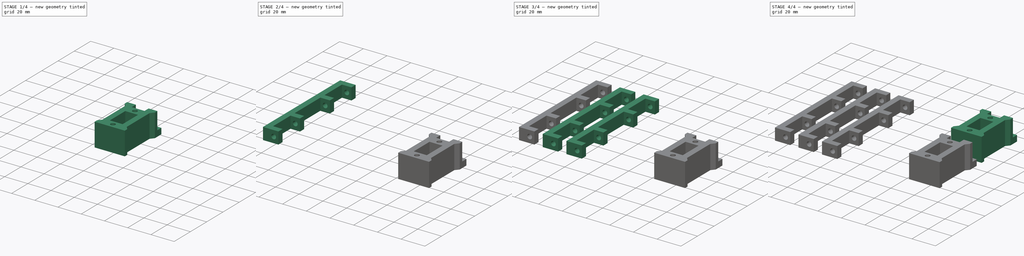
[diagram: build sequence overview — one tinted view per stage of 4, left to right]
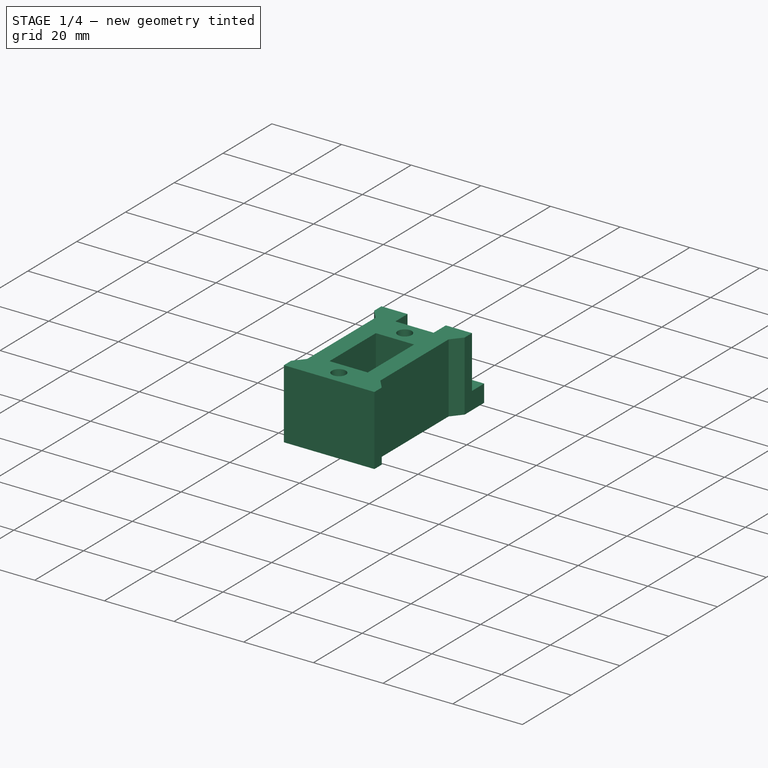
[diagram: stage 1 of 4 — iso view after this stage's code; geometry added in this stage tinted green]
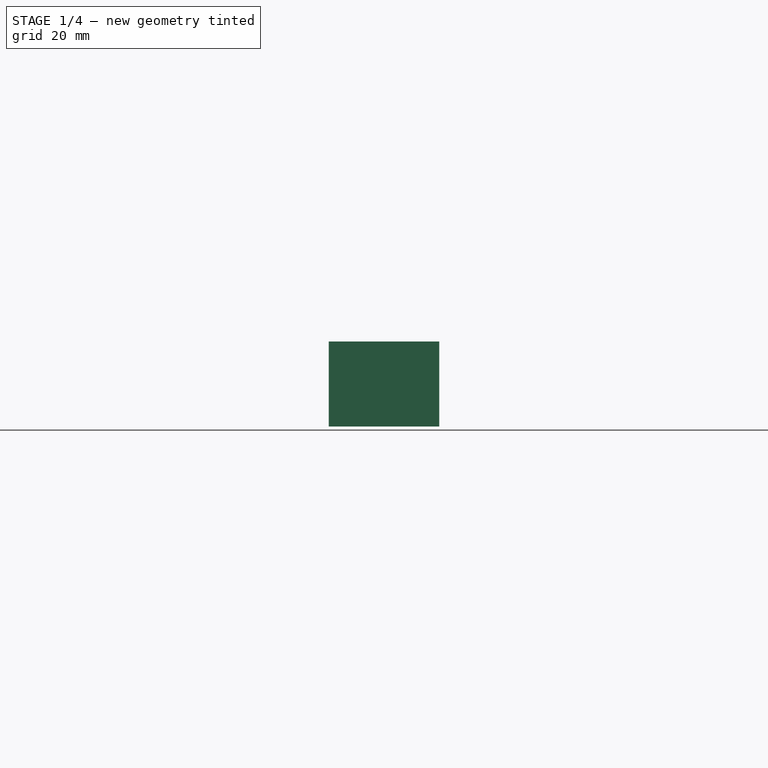
[diagram: stage 1 of 4 — front view after this stage's code; geometry added in this stage tinted green]
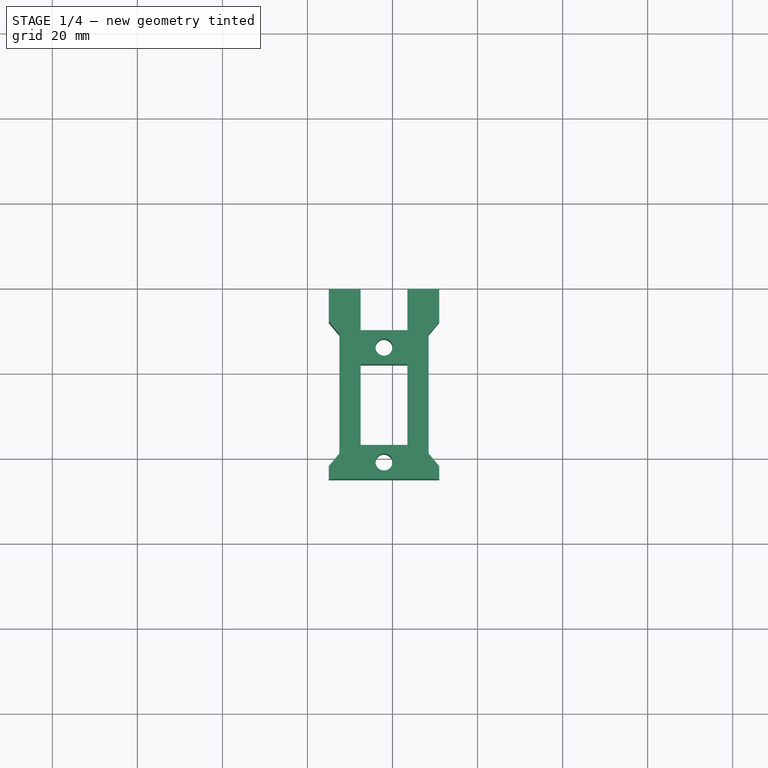
[diagram: stage 1 of 4 — top view after this stage's code; geometry added in this stage tinted green]
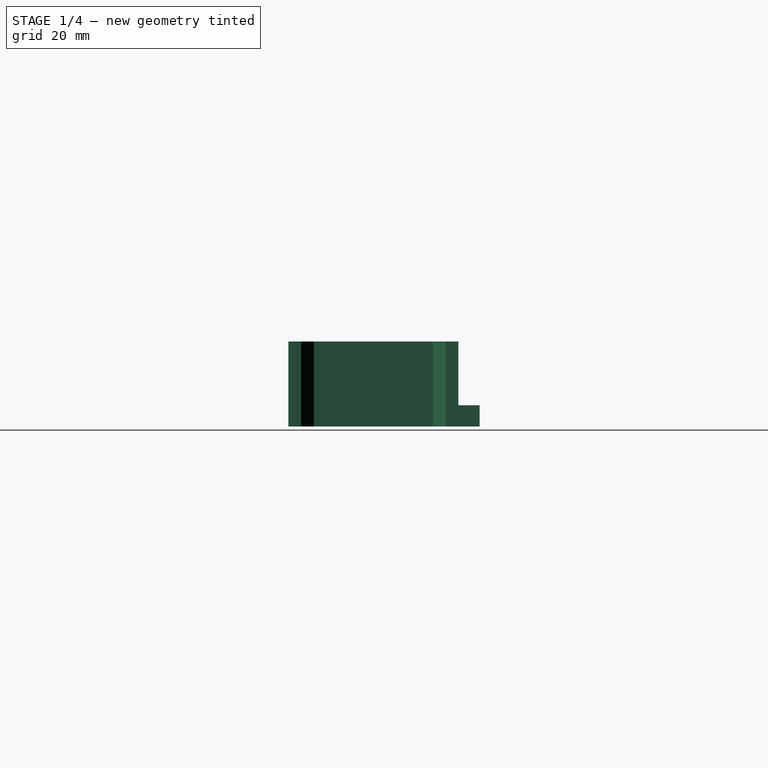
[diagram: stage 1 of 4 — right view after this stage's code; geometry added in this stage tinted green]
FCSTD DOCUMENT  (FreeCAD 0.15R4671 (Git))
Label: soportes
License: CreativeCommons Attribution-ShareAlike
LicenseURL: http://creativecommons.org/licenses/by-sa/4.0/
objects: Sketcher::SketchObject×6, PartDesign::Pad×5, Part::FeaturePython×5, App::DocumentObjectGroup×2, PartDesign::Pocket×1
note: 23 computed .brp shape members not serialized (recipe doc carries the construction recipe); baked Part::Feature solids carry a one-line shape summary decoded from their .brp

FEATURE [App::DocumentObjectGroup] Group001  label="barra_soporte_completo"
  Group = -> [Pad007,Pocket,Clone001,Clone002,Clone003]
FEATURE [Sketcher::SketchObject] Sketch011  label="sketch_soporte_A_sin_tope"
  Placement = pos=(5,-25,0) rot=(0,0,1;0rad)
  sketch-geometry (28):
    g0: LineSegment StartX=-13 StartY=-20 StartZ=0 EndX=13 EndY=-20 EndZ=0
    g1: LineSegment StartX=13 StartY=-20 StartZ=0 EndX=13 EndY=-17 EndZ=0
    g2: LineSegment StartX=13 StartY=-17 StartZ=0 EndX=10.5 EndY=-14 EndZ=0
    g3: LineSegment StartX=10.5 StartY=-14 StartZ=0 EndX=10.5 EndY=14 EndZ=0
    g4: LineSegment StartX=10.5 StartY=14 StartZ=0 EndX=13 EndY=17 EndZ=0
    g5: LineSegment StartX=13 StartY=17 StartZ=0 EndX=13 EndY=20 EndZ=0
    g6: LineSegment StartX=-13 StartY=20 StartZ=0 EndX=-13 EndY=17 EndZ=0
    g7: LineSegment StartX=-13 StartY=17 StartZ=0 EndX=-10.5 EndY=14 EndZ=0
    g8: LineSegment StartX=-10.5 StartY=14 StartZ=0 EndX=-10.5 EndY=-14 EndZ=0
    g9: LineSegment StartX=-10.5 StartY=-14 StartZ=0 EndX=-13 EndY=-17 EndZ=0
    g10: LineSegment StartX=-13 StartY=-17 StartZ=0 EndX=-13 EndY=-20 EndZ=0
    g11: LineSegment [constr] StartX=-10.5 StartY=14 StartZ=0 EndX=-10.5 EndY=20 EndZ=0
    g12: LineSegment StartX=-5.5 StartY=20 StartZ=0 EndX=-5.5 EndY=15 EndZ=0
    g13: LineSegment StartX=-5.5 StartY=15 StartZ=0 EndX=5.5 EndY=15 EndZ=0
    g14: LineSegment StartX=5.5 StartY=15 StartZ=0 EndX=5.5 EndY=20 EndZ=0
    g15: LineSegment StartX=5.5 StartY=20 StartZ=0 EndX=13 EndY=20 EndZ=0
    g16: LineSegment StartX=-5.5 StartY=20 StartZ=0 EndX=-13 EndY=20 EndZ=0
    g17: LineSegment StartX=-5.5 StartY=7 StartZ=0 EndX=5.5 EndY=7 EndZ=0
    g18: LineSegment StartX=5.5 StartY=7 StartZ=0 EndX=5.5 EndY=-12 EndZ=0
    g19: LineSegment StartX=5.5 StartY=-12 StartZ=0 EndX=-5.5 EndY=-12 EndZ=0
    g20: LineSegment StartX=-5.5 StartY=-12 StartZ=0 EndX=-5.5 EndY=7 EndZ=0
    g21: LineSegment [constr] StartX=5.5 StartY=-12 StartZ=0 EndX=5.5 EndY=-20 EndZ=0
    g22: LineSegment [constr] StartX=0 StartY=-20 StartZ=0 EndX=0 EndY=-16 EndZ=0
    g23: LineSegment [constr] StartX=0 StartY=-16 StartZ=0 EndX=0 EndY=-12 EndZ=0
    g24: Circle CenterX=0 CenterY=-16 CenterZ=0 NormalX=0 NormalY=0 NormalZ=1 Radius=2
    g25: LineSegment [constr] StartX=0 StartY=15 StartZ=0 EndX=0 EndY=11 EndZ=0
    g26: Circle CenterX=0 CenterY=11 CenterZ=0 NormalX=0 NormalY=0 NormalZ=1 Radius=2
    g27: LineSegment [constr] StartX=5.5 StartY=15 StartZ=0 EndX=5.5 EndY=7 EndZ=0
  constraints (78):
    c: Horizontal(g0)
    c: Coincident(g0,g1)
    c: Coincident(g1,g2)
    c: Coincident(g2,g3)
    c: Vertical(g3)
    c: Coincident(g3,g4)
    c: Coincident(g4,g5)
    c: Vertical(g5)
    c: Vertical(g6)
    c: Coincident(g6,g7)
    c: Coincident(g7,g8)
    c: Vertical(g8)
    c: Coincident(g8,g9)
    c: Coincident(g9,g10)
    c: Coincident(g10,g0)
    c: Vertical(g10)
    c: Symmetric(g3,g7,g-2)
    c: Equal(g3,g8)
    c: Symmetric(g6,g4,g-2)
    c: Vertical(g1)
    c: Symmetric(g1,g9,g-2)
    c: Equal(g10,g6)
    c: DistanceY(g6) = -3
    c: Vertical(g11)
    c: DistanceY(g11) = 6
    c: Coincident(g11,g7)
    c: DistanceX(g0) = 26
    c: Equal(g4,g2)
    c: DistanceX(g8,g2) = 21
    c: Symmetric(g6,g0,g-1)
    c: Vertical(g12)
    c: Coincident(g13,g12)
    c: Horizontal(g13)
    c: Coincident(g14,g13)
    c: Vertical(g14)
    c: Coincident(g15,g5)
    c: Horizontal(g15)
    c: Coincident(g14,g15)
    c: Coincident(g16,g12)
    c: Coincident(g16,g6)
    c: Horizontal(g16)
    c: Symmetric(g14,g12,g-2)
    c: DistanceY(g14) = 5
    c: DistanceX(g13) = 11
    c: PointOnObject(g11,g16)
    c: Coincident(g17,g18)
    c: Coincident(g18,g19)
    c: Coincident(g19,g20)
    c: Coincident(g20,g17)
    c: Horizontal(g17)
    c: Horizontal(g19)
    c: Vertical(g18)
    c: Vertical(g20)
    c: Symmetric(g17,g17,g-2)
    c: Coincident(g21,g18)
    c: PointOnObject(g21,g0)
    c: Vertical(g21)
    c: DistanceY(g21) = -8
    c: PointOnObject(g22,g0)
    c: PointOnObject(g22,g-2)
    c: Vertical(g22)
    c: Coincident(g23,g22)
    c: PointOnObject(g23,g19)
    c: Vertical(g23)
    c: Equal(g23,g22)
    c: Coincident(g24,g22)
    c: PointOnObject(g25,g13)
    c: PointOnObject(g25,g-2)
    c: Vertical(g25)
    c: Equal(g25,g22)
    c: Coincident(g26,g25)
    c: Equal(g26,g24)
    c: Radius(g26) = 2
    c: Equal(g13,g17)
    c: DistanceY(g5,g0) = -40
    c: Coincident(g27,g13)
    c: Coincident(g27,g17)
    c: Equal(g27,g21)
FEATURE [PartDesign::Pad] Pad009  label="soporte_B1_sin_tope"
  Length = 20
  Length2 = 100
  Placement = pos=(5,-25,0) rot=(0,0,1;0rad)
  Sketch = -> Sketch011
  Type = 0
FEATURE [Sketcher::SketchObject] Sketch012  label="sketch_tope002"
  ExternalGeometry = -> [Pad009]
  Placement = pos=(5,-5,0) rot=(0,0.707107,0.707107;3.14159rad)
  Support = -> Pad009 [Face13]
  sketch-geometry (10):
    g0: LineSegment StartX=-5.5 StartY=0 StartZ=0 EndX=-13 EndY=0 EndZ=0
    g1: LineSegment StartX=-13 StartY=0 StartZ=0 EndX=-13 EndY=5 EndZ=0
    g2: LineSegment StartX=-13 StartY=5 StartZ=0 EndX=-5.5 EndY=5 EndZ=0
    g3: LineSegment StartX=-5.5 StartY=5 StartZ=0 EndX=-5.5 EndY=0 EndZ=0
    g4: LineSegment StartX=13 StartY=0 StartZ=0 EndX=5.5 EndY=0 EndZ=0
    g5: LineSegment StartX=5.5 StartY=0 StartZ=0 EndX=5.5 EndY=5 EndZ=0
    g6: LineSegment StartX=5.5 StartY=5 StartZ=0 EndX=13 EndY=5 EndZ=0
    g7: LineSegment StartX=13 StartY=5 StartZ=0 EndX=13 EndY=0 EndZ=0
    g8: LineSegment [constr] StartX=-13 StartY=5 StartZ=0 EndX=-13 EndY=0 EndZ=0
    g9: LineSegment [constr] StartX=5.5 StartY=5 StartZ=0 EndX=5.5 EndY=0 EndZ=0
  constraints (30):
    c: Coincident(g0,g1)
    c: Coincident(g1,g2)
    c: Coincident(g2,g3)
    c: Coincident(g3,g0)
    c: Horizontal(g0)
    c: Horizontal(g2)
    c: Vertical(g1)
    c: Vertical(g3)
    c: Coincident(g0,g-3)
    c: PointOnObject(g1,g-4)
    c: Coincident(g4,g5)
    c: Coincident(g5,g6)
    c: Coincident(g6,g7)
    c: Coincident(g7,g4)
    c: Horizontal(g4)
    c: Horizontal(g6)
    c: Vertical(g5)
    c: Vertical(g7)
    c: Coincident(g4,g-6)
    c: PointOnObject(g5,g-5)
    c: PointOnObject(g8,g2)
    c: PointOnObject(g8,g0)
    c: Vertical(g8)
    c: PointOnObject(g9,g6)
    c: PointOnObject(g9,g4)
    c: Vertical(g9)
    c: Equal(g9,g8)
    c: DistanceY(g1,g0) = -5
    c: Coincident(g8,g0)
    c: Coincident(g9,g4)
FEATURE [PartDesign::Pad] Pad010  label="soporte_B1_con_tope"
  Length = 5
  Length2 = 100
  Placement = pos=(5,-25,0) rot=(0,0,1;0rad)
  Sketch = -> Sketch012
  Type = 0
FEATURE [Part::FeaturePython] Clone004  label="soporte_B2_con_tope"  # Draft clone (typed FeaturePython)
  Objects = -> [Pad010]
  Placement = pos=(38,-25,0) rot=(0,0,1;0rad)
  Scale = (1,1,1)
FEATURE [App::DocumentObjectGroup] Group  label="soporte_completo"
  Group = -> [Pad,Pad008,Clone,Pad009,Pad010,Clone004]
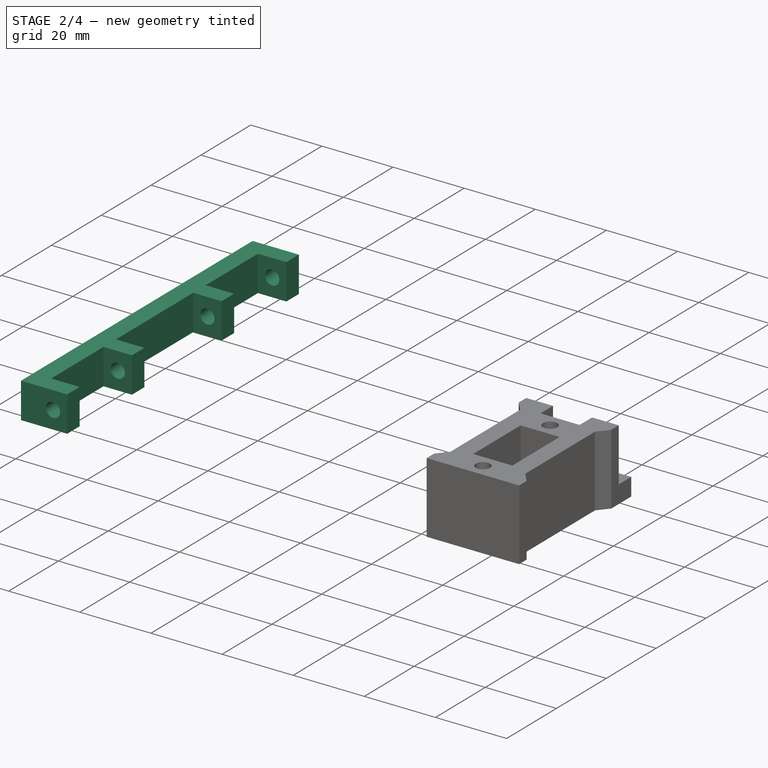
[diagram: stage 2 of 4 — iso view after this stage's code; geometry added in this stage tinted green]
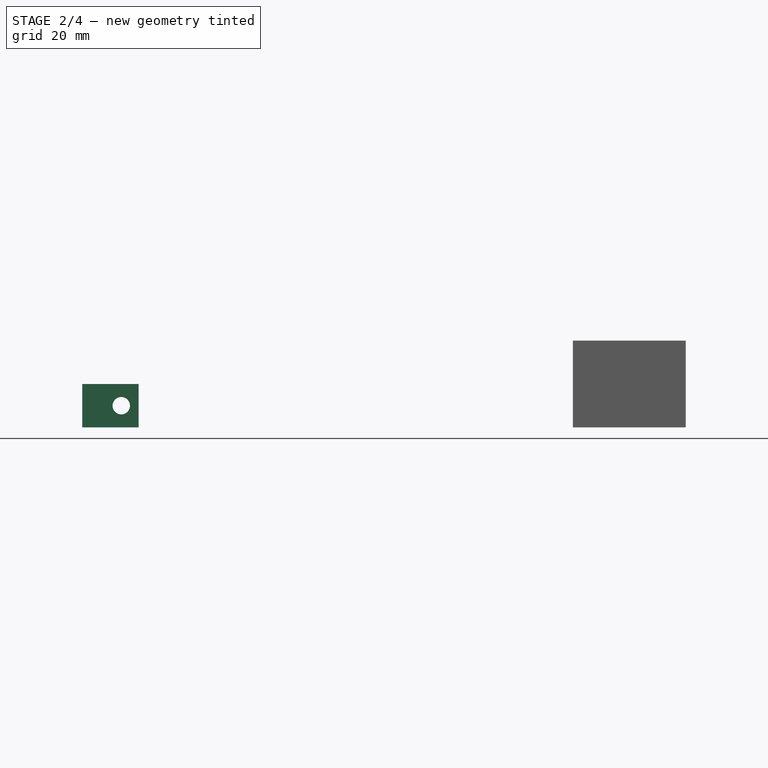
[diagram: stage 2 of 4 — front view after this stage's code; geometry added in this stage tinted green]
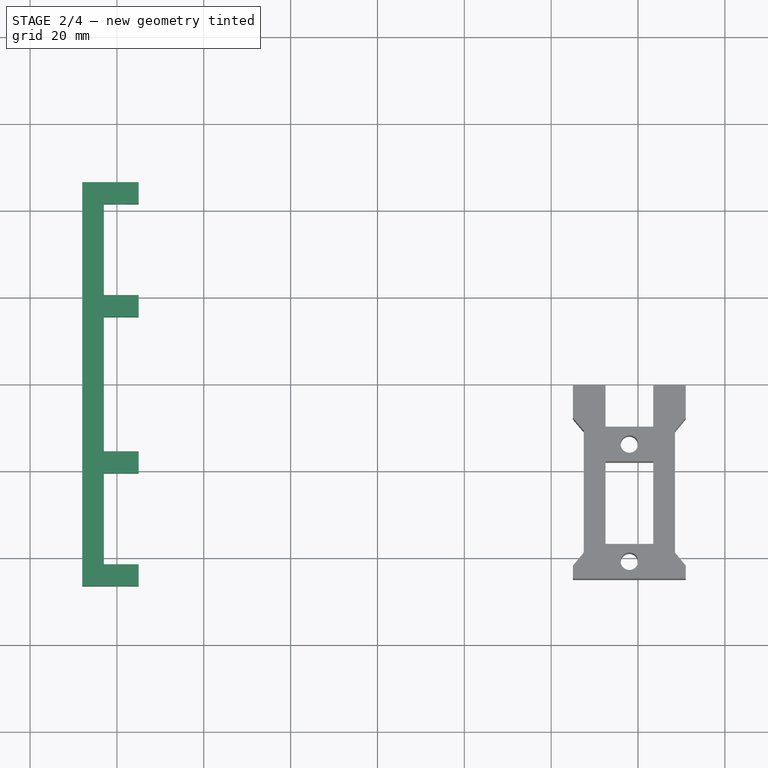
[diagram: stage 2 of 4 — top view after this stage's code; geometry added in this stage tinted green]
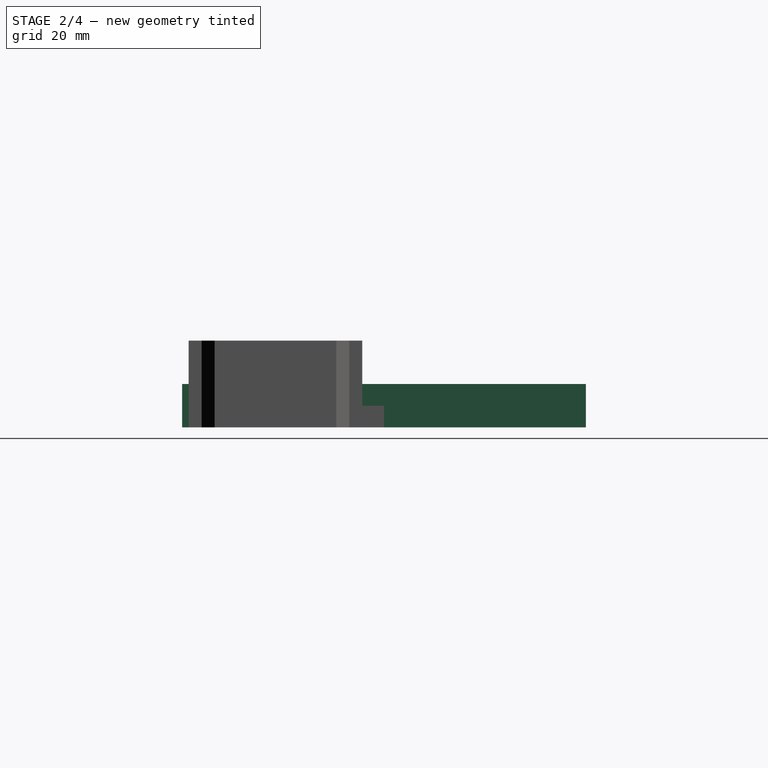
[diagram: stage 2 of 4 — right view after this stage's code; geometry added in this stage tinted green]
FEATURE [Sketcher::SketchObject] Sketch007  label="sketch_barra_soporte"
  Placement = pos=(-15,0,0) rot=(0,0,1;0rad)
  sketch-geometry (16):
    g0: LineSegment StartX=-13 StartY=46.5 StartZ=0 EndX=-13 EndY=-46.5 EndZ=0
    g1: LineSegment StartX=-13 StartY=-46.5 StartZ=0 EndX=0 EndY=-46.5 EndZ=0
    g2: LineSegment StartX=0 StartY=-46.5 StartZ=0 EndX=0 EndY=-41.5 EndZ=0
    g3: LineSegment StartX=0 StartY=-41.5 StartZ=0 EndX=-8 EndY=-41.5 EndZ=0
    g4: LineSegment StartX=-8 StartY=-41.5 StartZ=0 EndX=-8 EndY=-20.5 EndZ=0
    g5: LineSegment StartX=-8 StartY=-20.5 StartZ=0 EndX=0 EndY=-20.5 EndZ=0
    g6: LineSegment StartX=-8 StartY=41.5 StartZ=0 EndX=0 EndY=41.5 EndZ=0
    g7: LineSegment StartX=0 StartY=41.5 StartZ=0 EndX=0 EndY=46.5 EndZ=0
    g8: LineSegment StartX=0 StartY=46.5 StartZ=0 EndX=-13 EndY=46.5 EndZ=0
    g9: LineSegment StartX=0 StartY=-20.5 StartZ=0 EndX=0 EndY=-15.5 EndZ=0
    g10: LineSegment StartX=0 StartY=-15.5 StartZ=0 EndX=-8 EndY=-15.5 EndZ=0
    g11: LineSegment StartX=-8 StartY=-15.5 StartZ=0 EndX=-8 EndY=15.5 EndZ=0
    g12: LineSegment StartX=-8 StartY=15.5 StartZ=0 EndX=0 EndY=15.5 EndZ=0
    g13: LineSegment StartX=0 StartY=15.5 StartZ=0 EndX=0 EndY=20.5 EndZ=0
    g14: LineSegment StartX=0 StartY=20.5 StartZ=0 EndX=-8 EndY=20.5 EndZ=0
    g15: LineSegment StartX=-8 StartY=41.5 StartZ=0 EndX=-8 EndY=20.5 EndZ=0
  constraints (48):
    c: Horizontal(g5)
    c: Coincident(g7,g8)
    c: Coincident(g8,g0)
    c: DistanceY(g7) = 5
    c: Horizontal(g10)
    c: Coincident(g10,g11)
    c: Horizontal(g12)
    c: DistanceY(g0) = -93
    c: Coincident(g14,g13)
    c: Horizontal(g14)
    c: Coincident(g15,g6)
    c: Coincident(g15,g14)
    c: Vertical(g15)
    c: Equal(g7,g13)
    c: Equal(g13,g9)
    c: Equal(g9,g2)
    c: Equal(g6,g14)
    c: Equal(g14,g12)
    c: Equal(g12,g10)
    c: Equal(g10,g5)
    c: Equal(g5,g3)
    c: Vertical(g11)
    c: Coincident(g13,g12)
    c: Vertical(g13)
    c: Coincident(g5,g9)
    c: Coincident(g5,g4)
    c: Coincident(g4,g3)
    c: Coincident(g3,g2)
    c: Vertical(g9)
    c: Coincident(g10,g9)
    c: Vertical(g2)
    c: Coincident(g0,g1)
    c: Horizontal(g1)
    c: Horizontal(g8)
    c: Equal(g8,g1)
    c: Coincident(g1,g2)
    c: Horizontal(g3)
    c: Coincident(g7,g6)
    c: Horizontal(g6)
    c: Vertical(g7)
    c: Equal(g4,g15)
    c: Vertical(g4)
    c: Coincident(g12,g11)
    c: DistanceX(g3) = -8
    c: Symmetric(g0,g0,g-1)
    c: PointOnObject(g12,g-2)
    c: DistanceY(g4) = 21
    c: DistanceX(g6,g0) = -5
FEATURE [PartDesign::Pad] Pad007  label="barra_soporte"
  Length = 10
  Length2 = 100
  Placement = pos=(-15,0,0) rot=(0,0,1;0rad)
  Sketch = -> Sketch007
  Type = 0
FEATURE [Sketcher::SketchObject] Sketch010  label="sketch_agujero_pasante"
  ExternalGeometry = -> [Pad007]
  Placement = pos=(-15,46.5,0) rot=(0,0.707107,0.707107;3.14159rad)
  Support = -> Pad007 [Face3]
  sketch-geometry (3):
    g0: LineSegment [constr] StartX=0 StartY=5 StartZ=0 EndX=4 EndY=5 EndZ=0
    g1: LineSegment [constr] StartX=4 StartY=5 StartZ=0 EndX=8 EndY=5 EndZ=0
    g2: Circle CenterX=4 CenterY=5 CenterZ=0 NormalX=0 NormalY=0 NormalZ=1 Radius=2
  constraints (9):
    c: PointOnObject(g0,g-5)
    c: Horizontal(g0)
    c: Coincident(g1,g0)
    c: PointOnObject(g1,g-6)
    c: Horizontal(g1)
    c: Equal(g1,g0)
    c: Symmetric(g-5,g-1,g0)
    c: Coincident(g2,g0)
    c: Radius(g2) = 2
FEATURE [PartDesign::Pocket] Pocket  label="barra_soporte_A_con_agujero"
  Length = 5
  Placement = pos=(-15,0,0) rot=(0,0,1;0rad)
  Sketch = -> Sketch010
  Type = 1
FEATURE [Part::FeaturePython] Clone003  label="barra_soporte_D_con_agujero"  # Draft clone (typed FeaturePython)
  Objects = -> [Pocket]
  Placement = pos=(-75,0,0) rot=(0,0,1;0rad)
  Scale = (1,1,1)
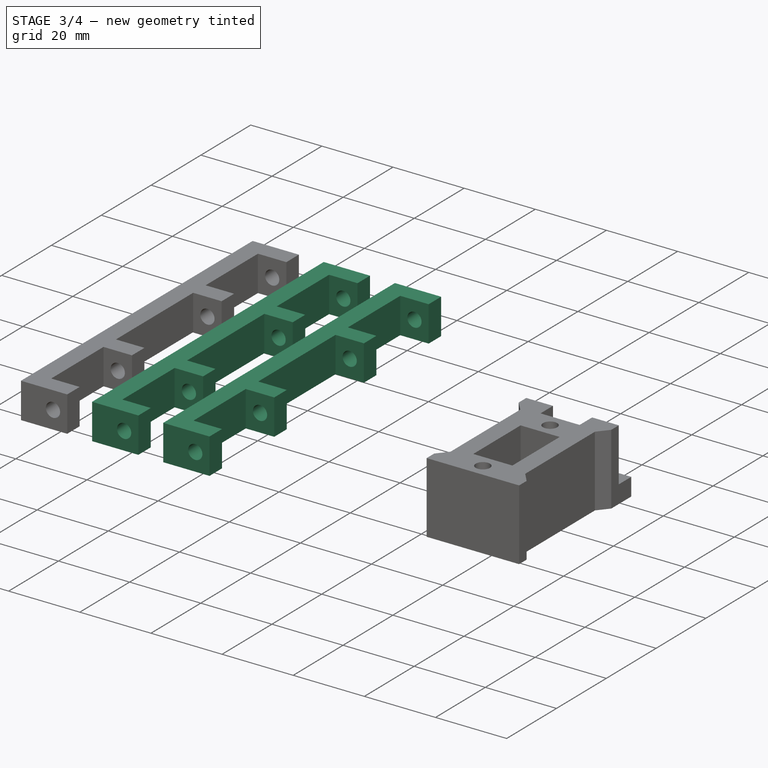
[diagram: stage 3 of 4 — iso view after this stage's code; geometry added in this stage tinted green]
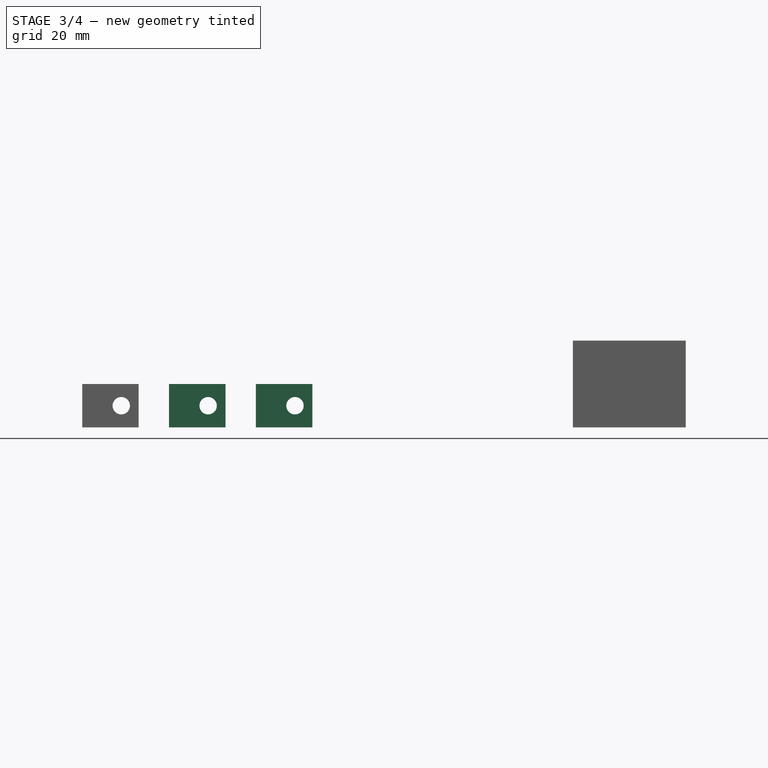
[diagram: stage 3 of 4 — front view after this stage's code; geometry added in this stage tinted green]
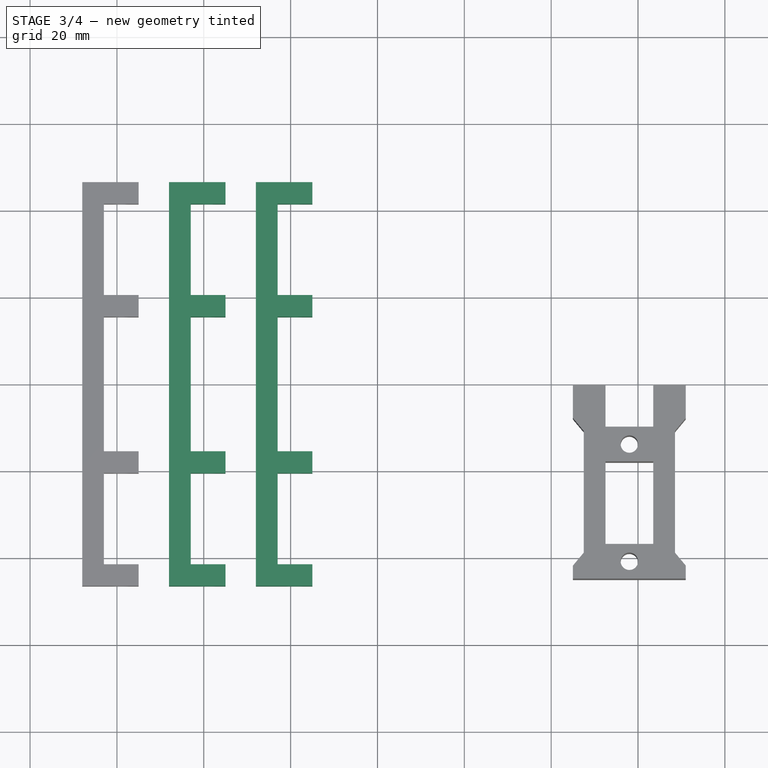
[diagram: stage 3 of 4 — top view after this stage's code; geometry added in this stage tinted green]
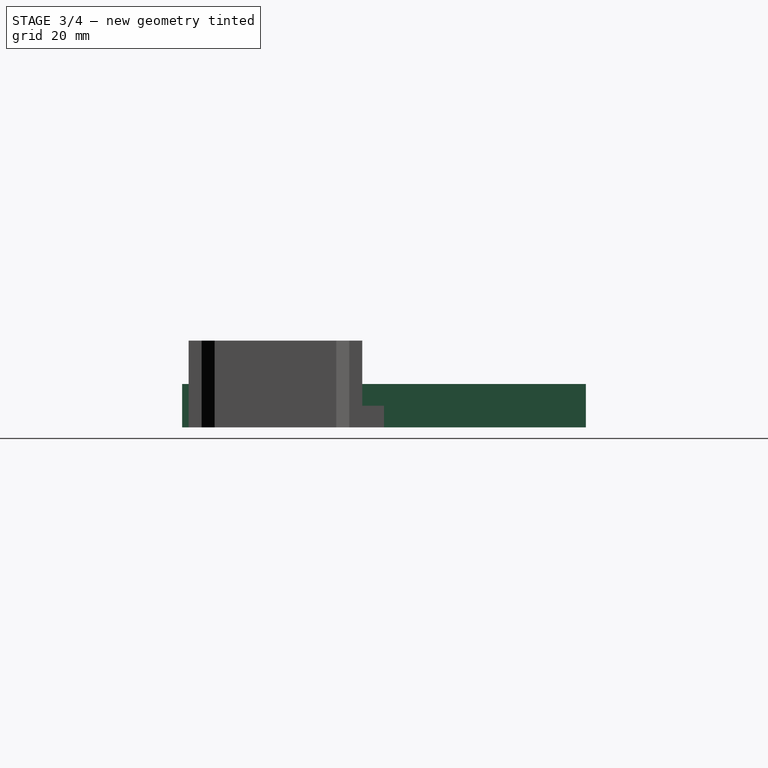
[diagram: stage 3 of 4 — right view after this stage's code; geometry added in this stage tinted green]
FEATURE [Part::FeaturePython] Clone001  label="barra_soporte_B_con_agujero"  # Draft clone (typed FeaturePython)
  Objects = -> [Pocket]
  Placement = pos=(-35,0,0) rot=(0,0,1;0rad)
  Scale = (1,1,1)
FEATURE [Part::FeaturePython] Clone002  label="barra_soporte_C_con_agujero"  # Draft clone (typed FeaturePython)
  Objects = -> [Pocket]
  Placement = pos=(-55,0,0) rot=(0,0,1;0rad)
  Scale = (1,1,1)
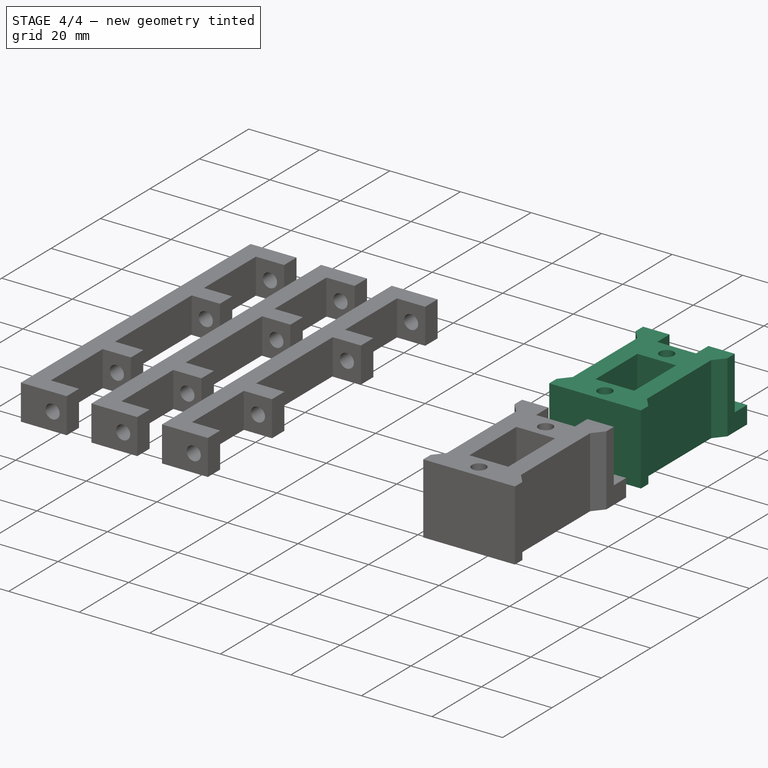
[diagram: stage 4 of 4 — iso view after this stage's code; geometry added in this stage tinted green]
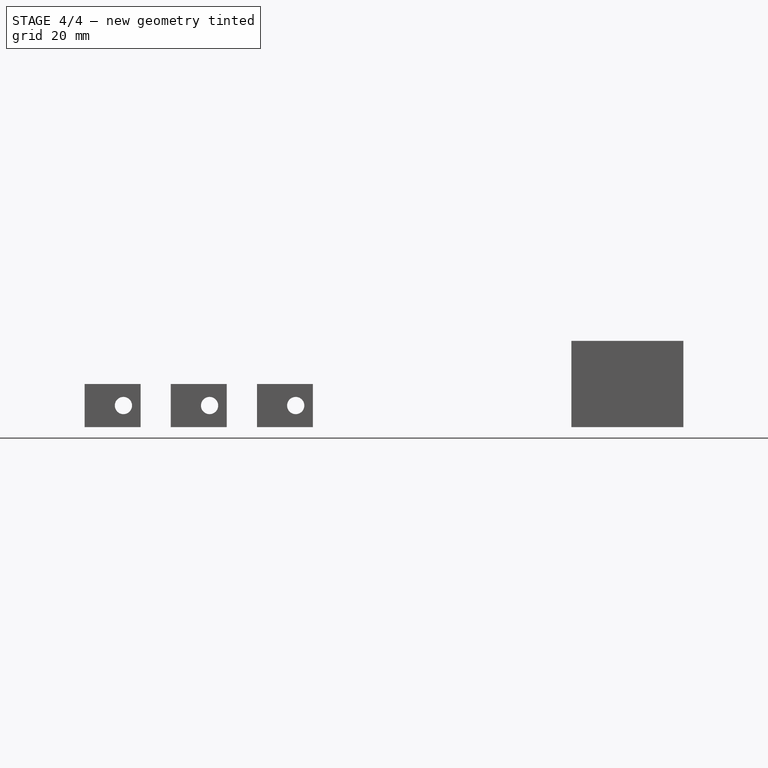
[diagram: stage 4 of 4 — front view after this stage's code; geometry added in this stage tinted green]
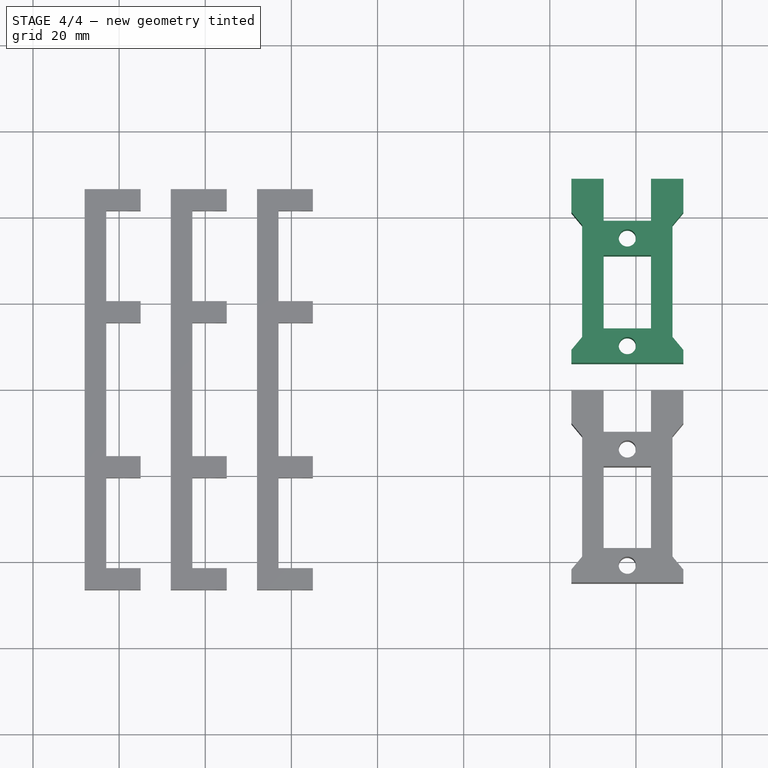
[diagram: stage 4 of 4 — top view after this stage's code; geometry added in this stage tinted green]
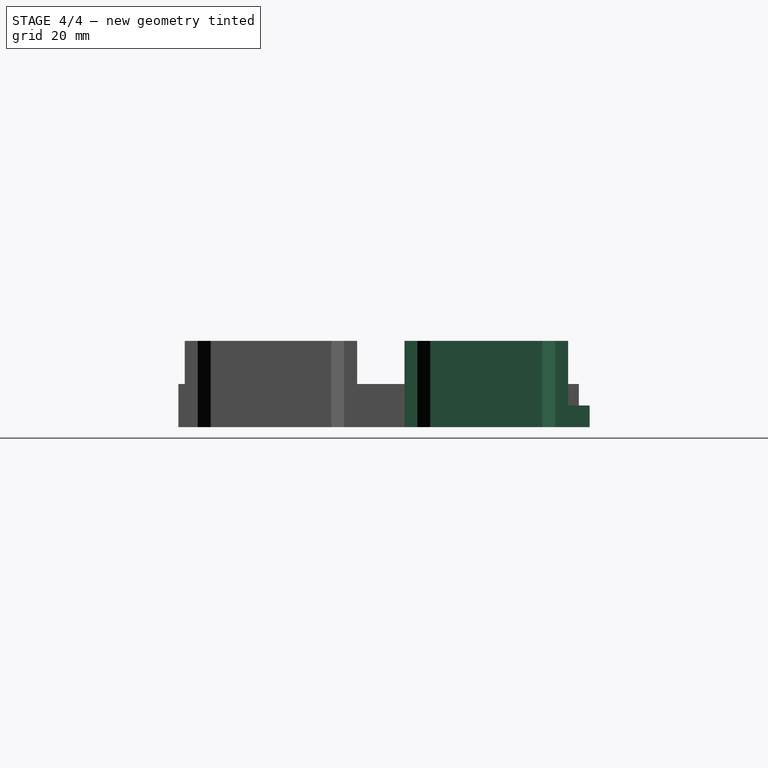
[diagram: stage 4 of 4 — right view after this stage's code; geometry added in this stage tinted green]
FEATURE [Sketcher::SketchObject] Sketch  label="sketch_soporte_sin_tope"
  Placement = pos=(5,25,0) rot=(0,0,1;0rad)
  sketch-geometry (28):
    g0: LineSegment StartX=-13 StartY=-19 StartZ=0 EndX=13 EndY=-19 EndZ=0
    g1: LineSegment StartX=13 StartY=-19 StartZ=0 EndX=13 EndY=-16 EndZ=0
    g2: LineSegment StartX=13 StartY=-16 StartZ=0 EndX=10.5 EndY=-13 EndZ=0
    g3: LineSegment StartX=10.5 StartY=-13 StartZ=0 EndX=10.5 EndY=13 EndZ=0
    g4: LineSegment StartX=10.5 StartY=13 StartZ=0 EndX=13 EndY=16 EndZ=0
    g5: LineSegment StartX=13 StartY=16 StartZ=0 EndX=13 EndY=19 EndZ=0
    g6: LineSegment StartX=-13 StartY=19 StartZ=0 EndX=-13 EndY=16 EndZ=0
    g7: LineSegment StartX=-13 StartY=16 StartZ=0 EndX=-10.5 EndY=13 EndZ=0
    g8: LineSegment StartX=-10.5 StartY=13 StartZ=0 EndX=-10.5 EndY=-13 EndZ=0
    g9: LineSegment StartX=-10.5 StartY=-13 StartZ=0 EndX=-13 EndY=-16 EndZ=0
    g10: LineSegment StartX=-13 StartY=-16 StartZ=0 EndX=-13 EndY=-19 EndZ=0
    g11: LineSegment [constr] StartX=-10.5 StartY=13 StartZ=0 EndX=-10.5 EndY=19 EndZ=0
    g12: LineSegment StartX=-5.5 StartY=19 StartZ=0 EndX=-5.5 EndY=14 EndZ=0
    g13: LineSegment StartX=-5.5 StartY=14 StartZ=0 EndX=5.5 EndY=14 EndZ=0
    g14: LineSegment StartX=5.5 StartY=14 StartZ=0 EndX=5.5 EndY=19 EndZ=0
    g15: LineSegment StartX=5.5 StartY=19 StartZ=0 EndX=13 EndY=19 EndZ=0
    g16: LineSegment StartX=-5.5 StartY=19 StartZ=0 EndX=-13 EndY=19 EndZ=0
    g17: LineSegment StartX=-5.5 StartY=6 StartZ=0 EndX=5.5 EndY=6 EndZ=0
    g18: LineSegment StartX=5.5 StartY=6 StartZ=0 EndX=5.5 EndY=-11 EndZ=0
    g19: LineSegment StartX=5.5 StartY=-11 StartZ=0 EndX=-5.5 EndY=-11 EndZ=0
    g20: LineSegment StartX=-5.5 StartY=-11 StartZ=0 EndX=-5.5 EndY=6 EndZ=0
    g21: LineSegment [constr] StartX=5.5 StartY=-11 StartZ=0 EndX=5.5 EndY=-19 EndZ=0
    g22: LineSegment [constr] StartX=0 StartY=-19 StartZ=0 EndX=0 EndY=-15 EndZ=0
    g23: LineSegment [constr] StartX=0 StartY=-15 StartZ=0 EndX=0 EndY=-11 EndZ=0
    g24: Circle CenterX=0 CenterY=-15 CenterZ=0 NormalX=0 NormalY=0 NormalZ=1 Radius=2
    g25: LineSegment [constr] StartX=0 StartY=14 StartZ=0 EndX=0 EndY=10 EndZ=0
    g26: Circle CenterX=0 CenterY=10 CenterZ=0 NormalX=0 NormalY=0 NormalZ=1 Radius=2
    g27: LineSegment [constr] StartX=5.5 StartY=14 StartZ=0 EndX=5.5 EndY=6 EndZ=0
  constraints (78):
    c: Horizontal(g0)
    c: Coincident(g0,g1)
    c: Coincident(g1,g2)
    c: Coincident(g2,g3)
    c: Vertical(g3)
    c: Coincident(g3,g4)
    c: Coincident(g4,g5)
    c: Vertical(g5)
    c: Vertical(g6)
    c: Coincident(g6,g7)
    c: Coincident(g7,g8)
    c: Vertical(g8)
    c: Coincident(g8,g9)
    c: Coincident(g9,g10)
    c: Coincident(g10,g0)
    c: Vertical(g10)
    c: Symmetric(g3,g7,g-2)
    c: Equal(g3,g8)
    c: Symmetric(g6,g4,g-2)
    c: Vertical(g1)
    c: Symmetric(g1,g9,g-2)
    c: Equal(g10,g6)
    c: DistanceY(g6) = -3
    c: Vertical(g11)
    c: DistanceY(g11) = 6
    c: Coincident(g11,g7)
    c: DistanceX(g0) = 26
    c: Equal(g4,g2)
    c: DistanceX(g8,g2) = 21
    c: Symmetric(g6,g0,g-1)
    c: Vertical(g12)
    c: Coincident(g13,g12)
    c: Horizontal(g13)
    c: Coincident(g14,g13)
    c: Vertical(g14)
    c: Coincident(g15,g5)
    c: Horizontal(g15)
    c: Coincident(g14,g15)
    c: Coincident(g16,g12)
    c: Coincident(g16,g6)
    c: Horizontal(g16)
    c: Symmetric(g14,g12,g-2)
    c: DistanceY(g14) = 5
    c: DistanceX(g13) = 11
    c: PointOnObject(g11,g16)
    c: Coincident(g17,g18)
    c: Coincident(g18,g19)
    c: Coincident(g19,g20)
    c: Coincident(g20,g17)
    c: Horizontal(g17)
    c: Horizontal(g19)
    c: Vertical(g18)
    c: Vertical(g20)
    c: Symmetric(g17,g17,g-2)
    c: Coincident(g21,g18)
    c: PointOnObject(g21,g0)
    c: Vertical(g21)
    c: DistanceY(g21) = -8
    c: PointOnObject(g22,g0)
    c: PointOnObject(g22,g-2)
    c: Vertical(g22)
    c: Coincident(g23,g22)
    c: PointOnObject(g23,g19)
    c: Vertical(g23)
    c: Equal(g23,g22)
    c: Coincident(g24,g22)
    c: PointOnObject(g25,g13)
    c: PointOnObject(g25,g-2)
    c: Vertical(g25)
    c: Equal(g25,g22)
    c: Coincident(g26,g25)
    c: Equal(g26,g24)
    c: Radius(g26) = 2
    c: Equal(g13,g17)
    c: DistanceY(g5,g0) = -38
    c: Coincident(g27,g13)
    c: Coincident(g27,g17)
    c: Equal(g27,g21)
FEATURE [PartDesign::Pad] Pad  label="soporte_A1_sin_tope"
  Length = 20
  Length2 = 100
  Placement = pos=(5,25,0) rot=(0,0,1;0rad)
  Sketch = -> Sketch
  Type = 0
FEATURE [Sketcher::SketchObject] Sketch009  label="sketch_tope1"
  ExternalGeometry = -> [Pad]
  Placement = pos=(5,44,0) rot=(0,0.707107,0.707107;3.14159rad)
  Support = -> Pad [Face13]
  sketch-geometry (10):
    g0: LineSegment StartX=-5.5 StartY=0 StartZ=0 EndX=-13 EndY=0 EndZ=0
    g1: LineSegment StartX=-13 StartY=0 StartZ=0 EndX=-13 EndY=5 EndZ=0
    g2: LineSegment StartX=-13 StartY=5 StartZ=0 EndX=-5.5 EndY=5 EndZ=0
    g3: LineSegment StartX=-5.5 StartY=5 StartZ=0 EndX=-5.5 EndY=0 EndZ=0
    g4: LineSegment StartX=13 StartY=0 StartZ=0 EndX=5.5 EndY=0 EndZ=0
    g5: LineSegment StartX=5.5 StartY=0 StartZ=0 EndX=5.5 EndY=5 EndZ=0
    g6: LineSegment StartX=5.5 StartY=5 StartZ=0 EndX=13 EndY=5 EndZ=0
    g7: LineSegment StartX=13 StartY=5 StartZ=0 EndX=13 EndY=0 EndZ=0
    g8: LineSegment [constr] StartX=-13 StartY=5 StartZ=0 EndX=-13 EndY=0 EndZ=0
    g9: LineSegment [constr] StartX=5.5 StartY=5 StartZ=0 EndX=5.5 EndY=0 EndZ=0
  constraints (30):
    c: Coincident(g0,g1)
    c: Coincident(g1,g2)
    c: Coincident(g2,g3)
    c: Coincident(g3,g0)
    c: Horizontal(g0)
    c: Horizontal(g2)
    c: Vertical(g1)
    c: Vertical(g3)
    c: Coincident(g0,g-3)
    c: PointOnObject(g1,g-4)
    c: Coincident(g4,g5)
    c: Coincident(g5,g6)
    c: Coincident(g6,g7)
    c: Coincident(g7,g4)
    c: Horizontal(g4)
    c: Horizontal(g6)
    c: Vertical(g5)
    c: Vertical(g7)
    c: Coincident(g4,g-6)
    c: PointOnObject(g5,g-5)
    c: PointOnObject(g8,g2)
    c: PointOnObject(g8,g0)
    c: Vertical(g8)
    c: PointOnObject(g9,g6)
    c: PointOnObject(g9,g4)
    c: Vertical(g9)
    c: Equal(g9,g8)
    c: DistanceY(g1,g0) = -5
    c: Coincident(g8,g0)
    c: Coincident(g9,g4)
FEATURE [PartDesign::Pad] Pad008  label="soporte_A1_con_tope"
  Length = 5
  Length2 = 100
  Placement = pos=(5,25,0) rot=(0,0,1;0rad)
  Sketch = -> Sketch009
  Type = 0
FEATURE [Part::FeaturePython] Clone  label="soporte_A2_con_tope"  # Draft clone (typed FeaturePython)
  Objects = -> [Pad008]
  Placement = pos=(38,25,0) rot=(0,0,1;0rad)
  Scale = (1,1,1)
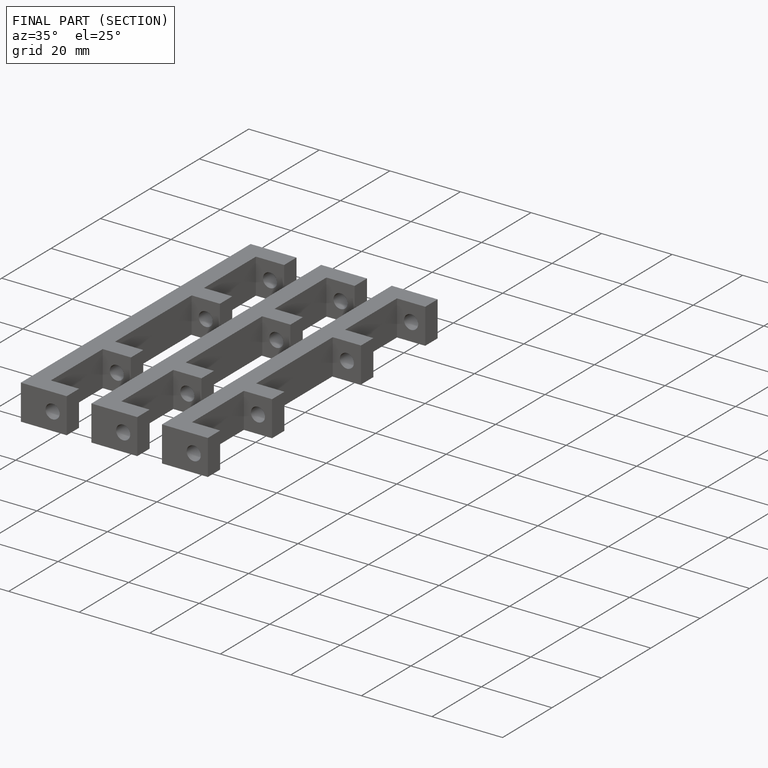
[diagram: finished part — half-section view (interior)]
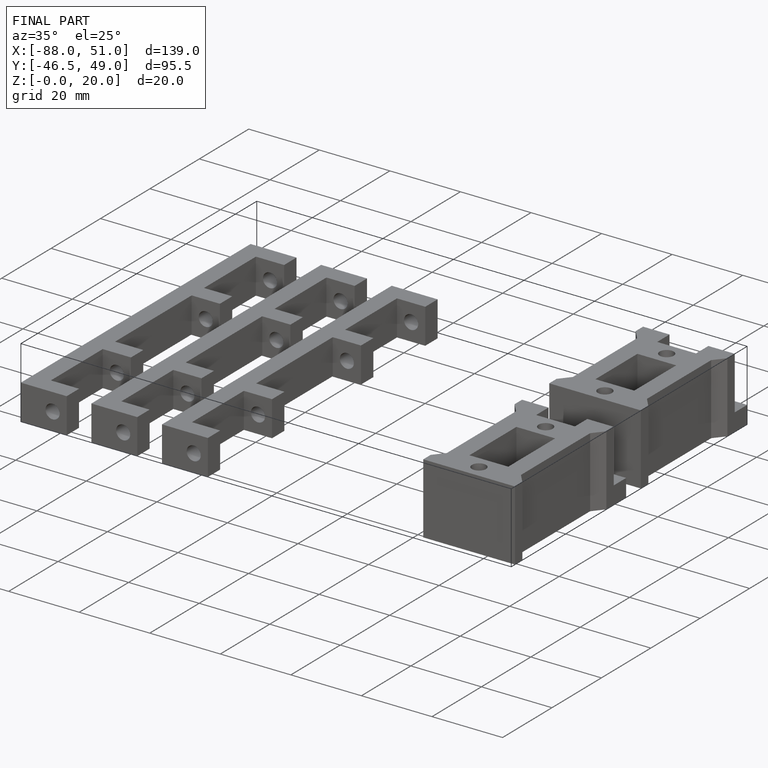
[diagram: finished part — iso view with bounding-box wireframe]
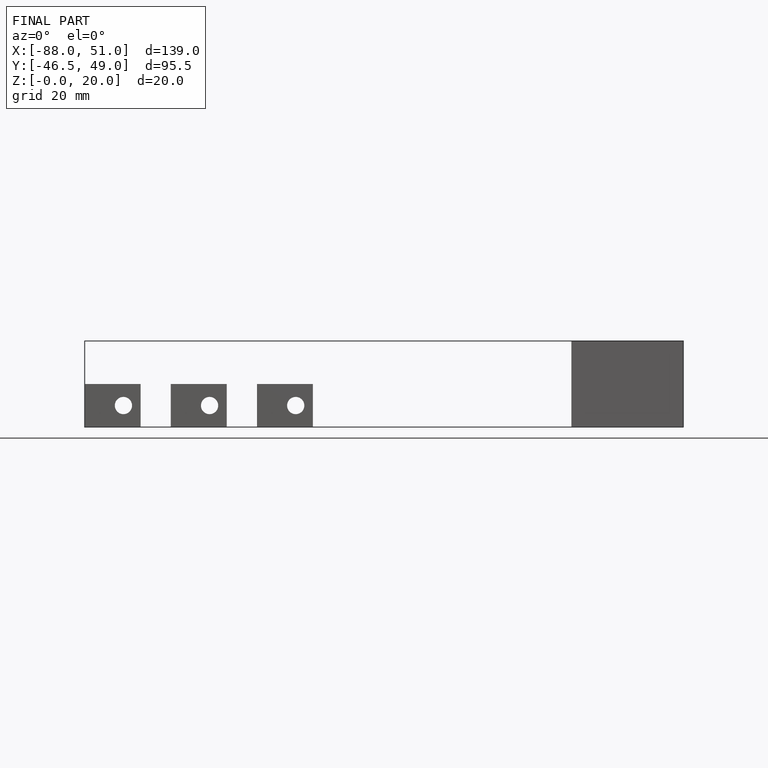
[diagram: finished part — front view with bounding-box wireframe]
